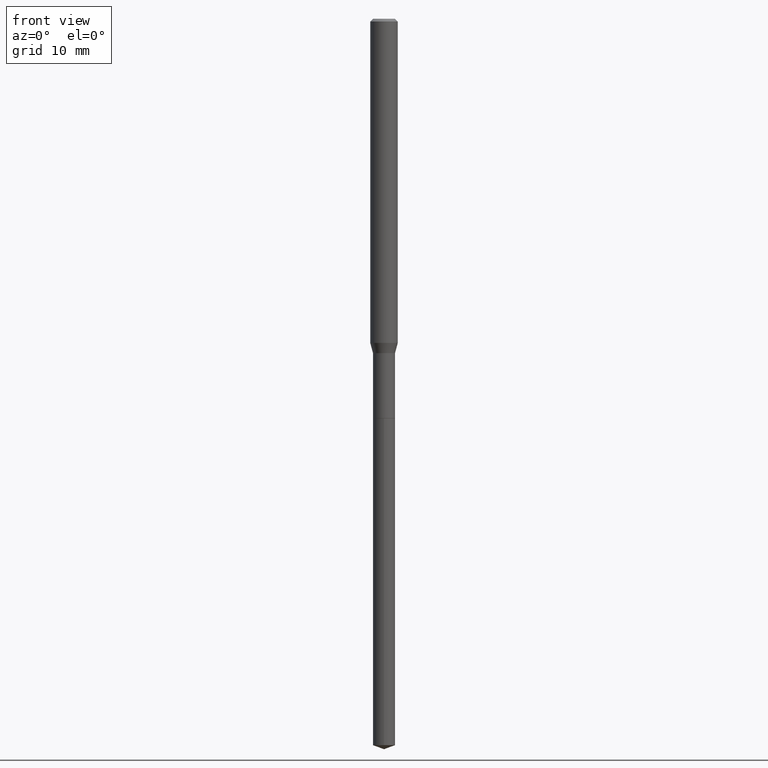
[diagram: clean part render]
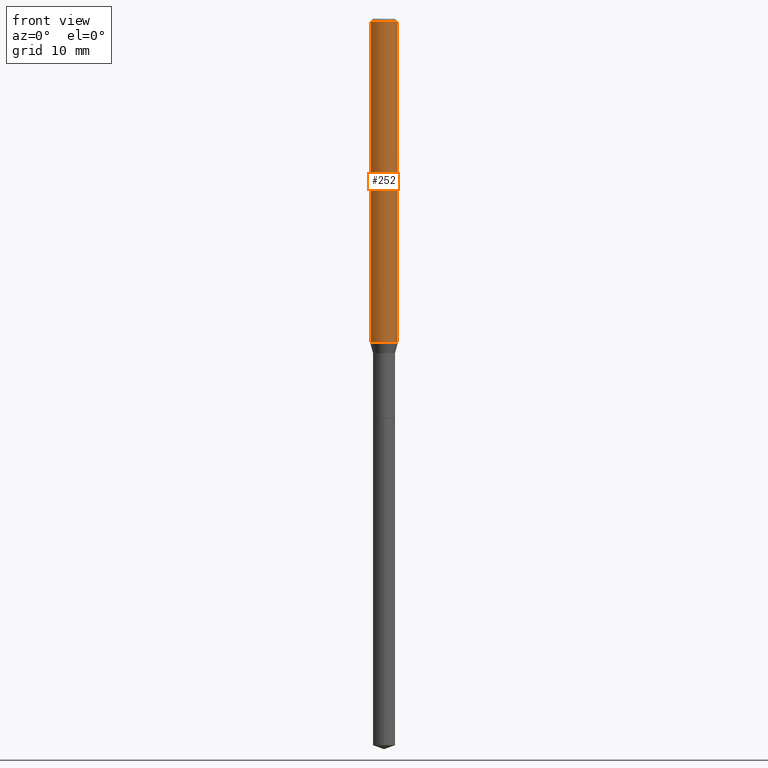
[diagram: same view with one face highlighted and labeled with its STEP entity id]
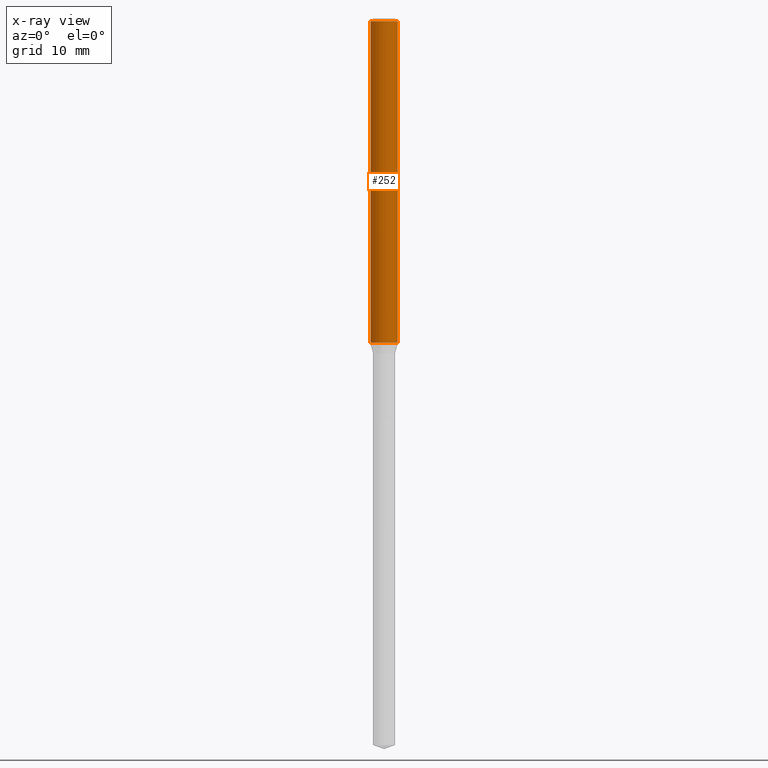
[diagram: x-ray of the same camera — body ghosted, the highlighted face saturated]
A machine part, front view. The second image highlights one B-rep face of the part: STEP entity #252.
The next image is the same camera in x-ray: the body ghosted, the highlighted face saturated — about 0% of this face is hidden behind the body in this view.
In plain terms, the highlighted cylindrical surface (edge-blend (fillet) strip) has radius 2.0003 mm, axis along (-0, 0, 1).
Its self-contained STEP definition (entity closure, byte-faithful):
#5 = EDGE_CURVE ( 'NONE', #378, #139, #95, .T. ) ;
#10 = VERTEX_POINT ( 'NONE', #94 ) ;
#27 = CARTESIAN_POINT ( 'NONE',  ( 0.07875000000000000056, -6.048991419545733705E-16, -0.01575000000000010419 ) ) ;
#74 = LINE ( 'NONE', #188, #426 ) ;
#85 = DIRECTION ( 'NONE',  ( 1.000000000000000000, -6.982962677686267499E-15, 4.876176775795936353E-29 ) ) ;
#92 = CARTESIAN_POINT ( 'NONE',  ( 4.527590345704972741E-29, -6.464199077891873134E-15, -1.851420199780788867 ) ) ;
#93 = ORIENTED_EDGE ( 'NONE', *, *, #5, .F. ) ;
#94 = CARTESIAN_POINT ( 'NONE',  ( -0.07875000000000023648, -5.904646673480791966E-15, -1.851420199780788867 ) ) ;
#95 = CIRCLE ( 'NONE', #142, 0.07875000000000000056 ) ;
#99 = LINE ( 'NONE', #248, #355 ) ;
#108 = CARTESIAN_POINT ( 'NONE',  ( 0.000000000000000000, 0.000000000000000000, 0.000000000000000000 ) ) ;
#114 = FACE_OUTER_BOUND ( 'NONE', #461, .T. ) ;
#119 = AXIS2_PLACEMENT_3D ( 'NONE', #108, #225, #85 ) ;
#130 = CARTESIAN_POINT ( 'NONE',  ( 3.851613369741615237E-31, -5.499083108677990156E-17, -0.01575000000000010419 ) ) ;
#133 = VERTEX_POINT ( 'NONE', #371 ) ;
#139 = VERTEX_POINT ( 'NONE', #27 ) ;
#142 = AXIS2_PLACEMENT_3D ( 'NONE', #130, #438, #278 ) ;
#162 = DIRECTION ( 'NONE',  ( -2.445468806185136597E-29, 3.491481338843145583E-15, 1.000000000000000000 ) ) ;
#188 = CARTESIAN_POINT ( 'NONE',  ( 0.07875000000000011158, -5.499083108677943318E-16, 3.839989210939305322E-30 ) ) ;
#193 = ORIENTED_EDGE ( 'NONE', *, *, #204, .T. ) ;
#204 = EDGE_CURVE ( 'NONE', #133, #139, #74, .T. ) ;
#225 = DIRECTION ( 'NONE',  ( -2.445468806185136597E-29, 3.491481338843145583E-15, 1.000000000000000000 ) ) ;
#227 = CARTESIAN_POINT ( 'NONE',  ( -0.07875000000000000056, -2.700042550078244672E-15, -0.01575000000000010419 ) ) ;
#238 = DIRECTION ( 'NONE',  ( -2.445468806185136877E-29, 3.491481338843145188E-15, 1.000000000000000000 ) ) ;
#248 = CARTESIAN_POINT ( 'NONE',  ( -0.07875000000000011158, 5.595524044110796892E-16, -3.873661383575744098E-30 ) ) ;
#252 = ADVANCED_FACE ( 'NONE', ( #114 ), #445, .T. ) ;
#253 = CIRCLE ( 'NONE', #268, 0.07875000000000023648 ) ;
#268 = AXIS2_PLACEMENT_3D ( 'NONE', #92, #162, #312 ) ;
#278 = DIRECTION ( 'NONE',  ( 1.000000000000000000, -6.982962677686265922E-15, 0.000000000000000000 ) ) ;
#312 = DIRECTION ( 'NONE',  ( 1.000000000000000000, -6.982962677686265133E-15, 0.000000000000000000 ) ) ;
#355 = VECTOR ( 'NONE', #238, 39.37007874015748143 ) ;
#359 = ORIENTED_EDGE ( 'NONE', *, *, #446, .T. ) ;
#371 = CARTESIAN_POINT ( 'NONE',  ( 0.07875000000000023648, -7.014107388759668057E-15, -1.851420199780788867 ) ) ;
#378 = VERTEX_POINT ( 'NONE', #227 ) ;
#394 = EDGE_CURVE ( 'NONE', #10, #378, #99, .T. ) ;
#406 = DIRECTION ( 'NONE',  ( -2.445468806185136877E-29, 3.491481338843145188E-15, 1.000000000000000000 ) ) ;
#426 = VECTOR ( 'NONE', #406, 39.37007874015748143 ) ;
#438 = DIRECTION ( 'NONE',  ( -2.445468806185136597E-29, 3.491481338843145583E-15, 1.000000000000000000 ) ) ;
#445 = CYLINDRICAL_SURFACE ( 'NONE', #119, 0.07875000000000011158 ) ;
#446 = EDGE_CURVE ( 'NONE', #10, #133, #253, .T. ) ;
#455 = ORIENTED_EDGE ( 'NONE', *, *, #394, .F. ) ;
#461 = EDGE_LOOP ( 'NONE', ( #455, #359, #193, #93 ) ) ;